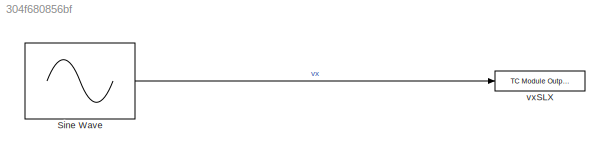
MODEL slx_304f680856bf
KIND model
CONFIG AbsTol = auto
CONFIG EnableMultiTasking = off
CONFIG FixedStep = 10e-3
CONFIG MaxStep = auto
CONFIG MinStep = auto
CONFIG RelTol = 1e-3
CONFIG SampleTimeConstraint = Unconstrained
CONFIG SolverName = ode1
CONFIG StartTime = 0.0
CONFIG StopTime = inf
BLOCK [Sin] Sine Wave
  Amplitude = 300
  Ports = [0, 1]
  SampleTime = 10e-3
  Samples = 800
  SineType = Sample based
BLOCK [Reference] vxSLX  REF=TcTargetLib/TC Module Output
  Ports = [1]
  SourceBlock = TcTargetLib/TC Module Output
  SourceProductName = Beckhoff TwinCAT Target
  SourceType = TC Module Output
LINE Sine Wave:1 -> vxSLX:1
